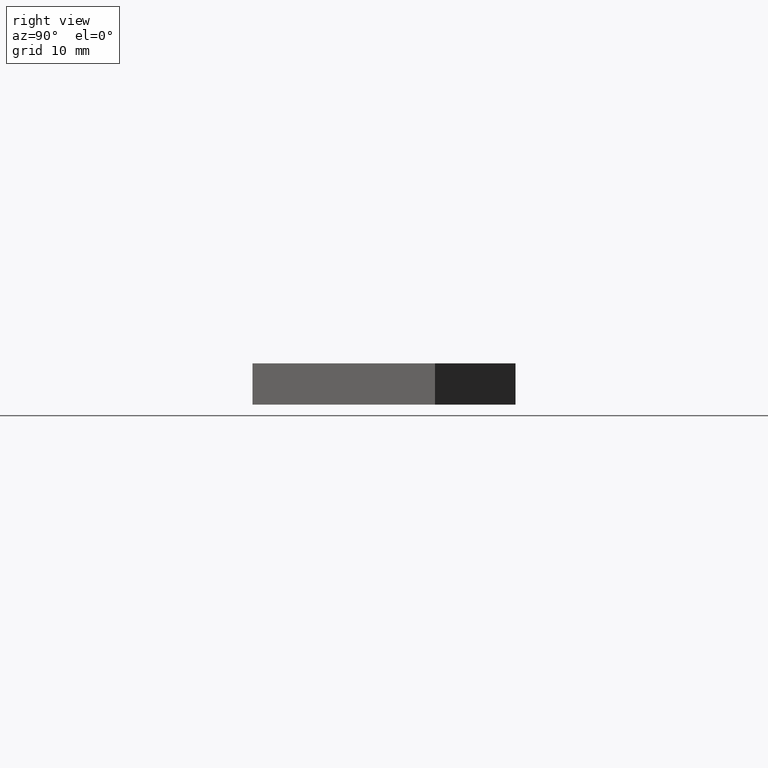
[diagram: clean part render]
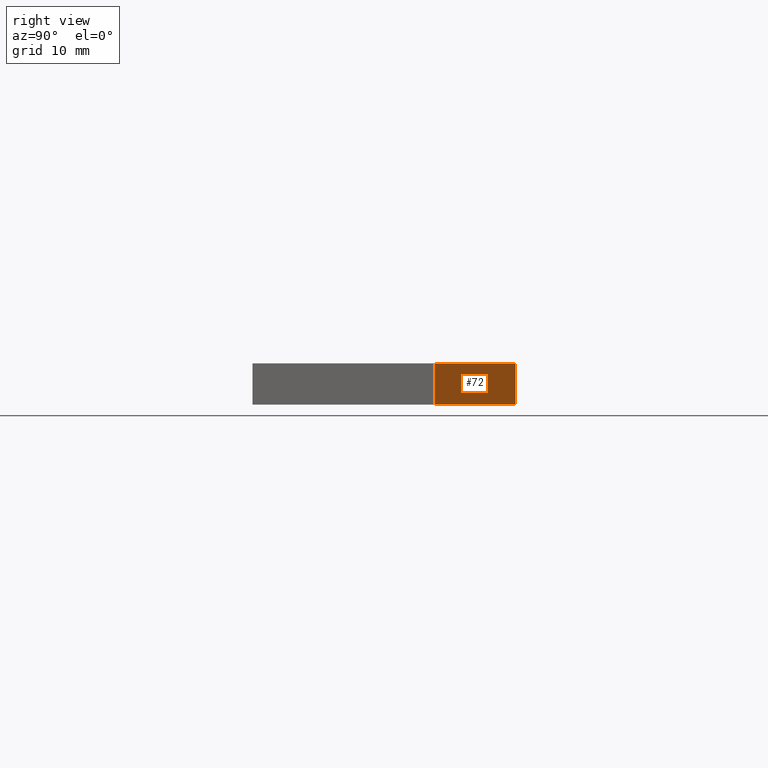
[diagram: same view with one face highlighted and labeled with its STEP entity id]
A machine part, right view. The second image highlights one B-rep face of the part: STEP entity #72.
In plain terms, the highlighted planar face has unit normal (-0.866, -0.5, 0).
Its self-contained STEP definition (entity closure, byte-faithful):
#17=CARTESIAN_POINT('',(86.399374999653446,19.749999999920874,0.0));
#18=VERTEX_POINT('',#17);
#25=CARTESIAN_POINT('',(86.399374999653446,19.749999999920874,6.0));
#26=VERTEX_POINT('',#25);
#27=CARTESIAN_POINT('',(86.399374999653446,19.749999999920874,6.0));
#28=DIRECTION('',(0.0,0.0,-1.0));
#29=VECTOR('',#28,6.0);
#30=LINE('',#27,#29);
#31=EDGE_CURVE('',#26,#18,#30,.T.);
#42=CARTESIAN_POINT('',(86.399374999653446,19.749999999920874,6.0));
#43=DIRECTION('',(-0.866025404690192,-0.499999998431189,0.0));
#44=DIRECTION('',(-0.499999998431189,0.866025404690192,0.0));
#45=AXIS2_PLACEMENT_3D('',#42,#43,#44);
#46=PLANE('',#45);
#47=ORIENTED_EDGE('',*,*,#31,.T.);
#48=CARTESIAN_POINT('',(79.649374999681640,31.441342999874450,0.0));
#49=VERTEX_POINT('',#48);
#50=CARTESIAN_POINT('',(86.399374999653730,19.749999999920970,0.0));
#51=DIRECTION('',(-0.499999998431208,0.866025404690181,0.0));
#52=VECTOR('',#51,13.500000042303386);
#53=LINE('',#50,#52);
#54=EDGE_CURVE('',#18,#49,#53,.T.);
#55=ORIENTED_EDGE('',*,*,#54,.T.);
#56=CARTESIAN_POINT('',(79.649374999681640,31.441342999874450,6.0));
#57=VERTEX_POINT('',#56);
#58=CARTESIAN_POINT('',(79.649374999681640,31.441342999874450,6.0));
#59=DIRECTION('',(0.0,0.0,-1.0));
#60=VECTOR('',#59,6.0);
#61=LINE('',#58,#60);
#62=EDGE_CURVE('',#57,#49,#61,.T.);
#63=ORIENTED_EDGE('',*,*,#62,.F.);
#64=CARTESIAN_POINT('',(86.399374999653730,19.749999999920970,6.0));
#65=DIRECTION('',(-0.499999998431208,0.866025404690181,0.0));
#66=VECTOR('',#65,13.500000042303386);
#67=LINE('',#64,#66);
#68=EDGE_CURVE('',#26,#57,#67,.T.);
#69=ORIENTED_EDGE('',*,*,#68,.F.);
#70=EDGE_LOOP('',(#47,#55,#63,#69));
#71=FACE_OUTER_BOUND('',#70,.T.);
#72=ADVANCED_FACE('',(#71),#46,.F.);